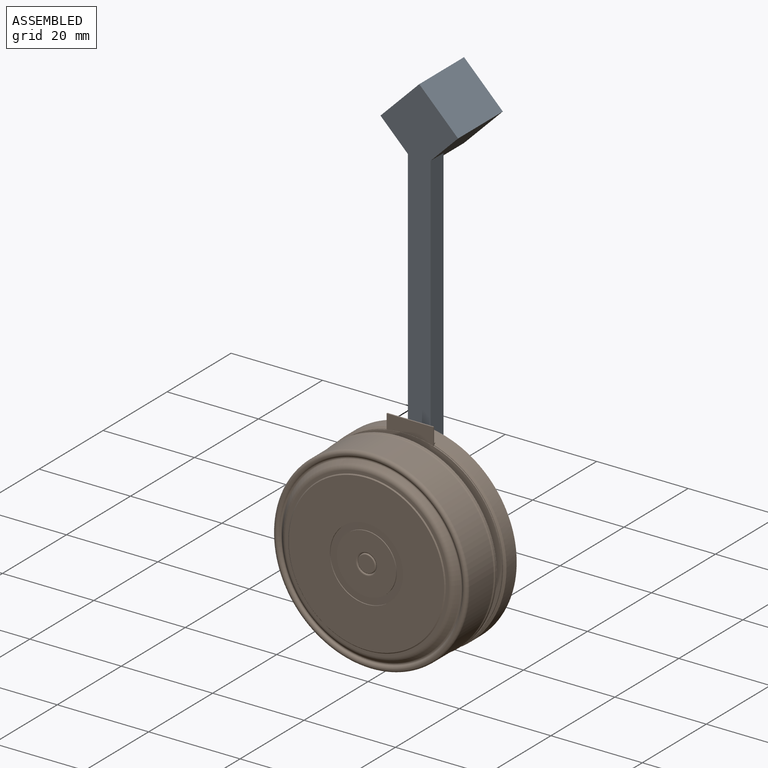
[diagram: assembled view]
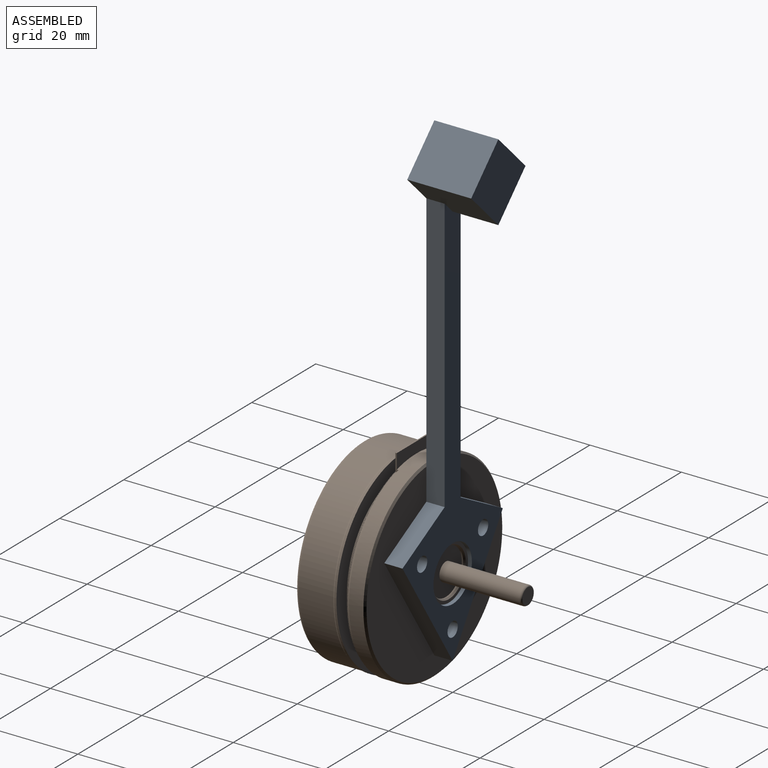
[diagram: assembled view, second angle]
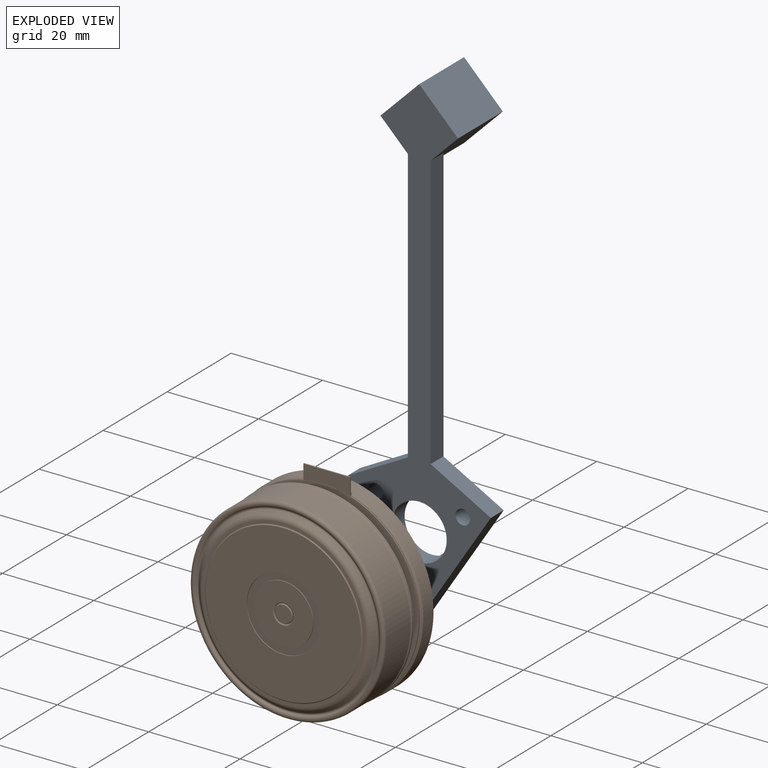
[diagram: exploded view]
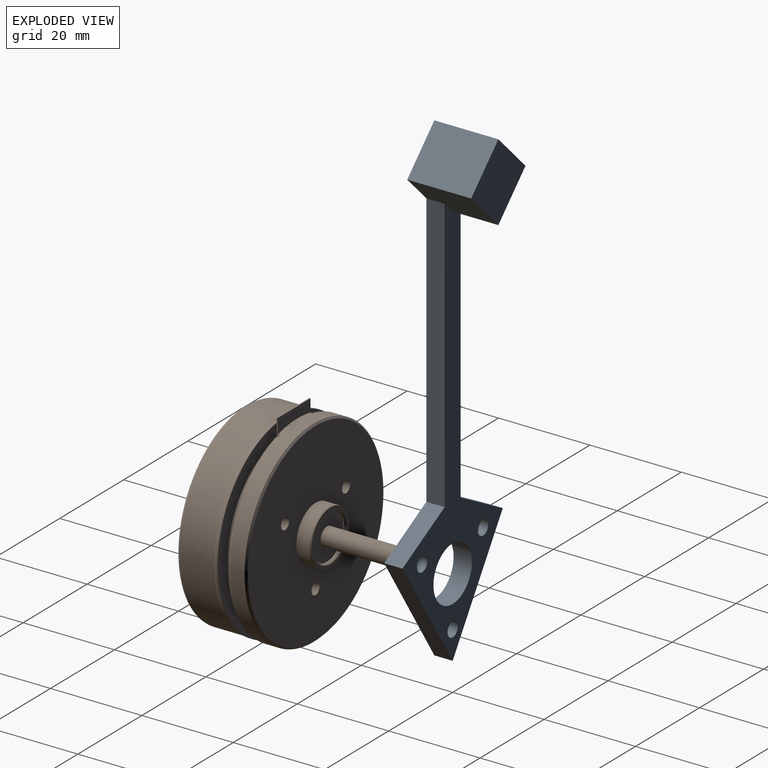
[diagram: exploded view, second angle]
FCSTD DOCUMENT  (FreeCAD 1.0R39109 (Git))
Label: motor
License: All rights reserved
LicenseURL: https://en.wikipedia.org/wiki/All_rights_reserved
objects: Sketcher::SketchObject×2, PartDesign::Pad×2, App::Link×2, App::FeaturePython×2, Part::Feature×1, Part::Box×1, Part::Cut×1, Assembly::JointGroup×1, Assembly::AssemblyObject×1, PartDesign::Body×1
note: 14 computed .brp shape members not serialized (recipe doc carries the construction recipe); baked Part::Feature solids carry a one-line shape summary decoded from their .brp

FEATURE [Part::Feature] Part__Feature  label="1035638"
  shape: bbox 37 x 126.1 x 47.12 mm, 78 faces (baked)
FEATURE [Part::Box] Box  label="Cube"
  AttacherType = Attacher::AttachEngine3D
  Height = 15
  Length = 5
  Placement = pos=(0,-124,-7) rot=(0,0,1;0rad)
  Width = 100
FEATURE [Part::Cut] Cut
  Base = -> Part__Feature
  Tool = -> Box
FEATURE [Sketcher::SketchObject] Sketch
  ArcFitTolerance = 1e-06
  AttachmentSupport = -> [XZ_Plane]
  FullyConstrained = false
  MakeInternals = false
  MapMode = 5
  Placement = pos=(0,0,0) rot=(1,0,0;1.5708rad)
  sketch-geometry (18):
    g0: LineSegment StartX=-2.5 StartY=14.1095 StartZ=0 EndX=-2.5 EndY=74.1095 EndZ=0
    g1: LineSegment StartX=2.5 StartY=14.1095 StartZ=0 EndX=2.5 EndY=74.1095 EndZ=0
    g2: LineSegment StartX=2.5 StartY=74.1095 StartZ=0 EndX=8.48528 EndY=80.0948 EndZ=0
    g3: LineSegment StartX=8.48528 StartY=80.0948 StartZ=0 EndX=0 EndY=88.5801 EndZ=0
    g4: LineSegment StartX=0 StartY=88.5801 StartZ=0 EndX=-8.48528 EndY=80.0948 EndZ=0
    g5: Circle CenterX=-9.52628 CenterY=5.5 CenterZ=0 NormalX=0 NormalY=0 NormalZ=1 AngleXU=0 Radius=1.6
    g6: Circle CenterX=9.52628 CenterY=5.5 CenterZ=0 NormalX=0 NormalY=0 NormalZ=1 AngleXU=0 Radius=1.6
    g7: Circle CenterX=0 CenterY=-11 CenterZ=0 NormalX=0 NormalY=0 NormalZ=1 AngleXU=0 Radius=1.6
    g8: LineSegment [constr] StartX=9.52628 StartY=5.5 StartZ=0 EndX=-9.52628 EndY=5.5 EndZ=0
    g9: LineSegment [constr] StartX=-9.52628 StartY=5.5 StartZ=0 EndX=0 EndY=-11 EndZ=0
    g10: LineSegment [constr] StartX=0 StartY=-11 StartZ=0 EndX=9.52628 EndY=5.5 EndZ=0
    g11: LineSegment StartX=-2.5 StartY=14.1095 StartZ=0 EndX=-15.6702 EndY=6.97829 EndZ=0
    g12: LineSegment StartX=-15.6702 StartY=6.97829 StartZ=0 EndX=0 EndY=-17.2325 EndZ=0
    g13: LineSegment StartX=0 StartY=-17.2325 StartZ=0 EndX=15.6702 EndY=6.97829 EndZ=0
    g14: LineSegment StartX=15.6702 StartY=6.97829 StartZ=0 EndX=2.5 EndY=14.1095 EndZ=0
    g15: Circle CenterX=0 CenterY=0 CenterZ=0 NormalX=0 NormalY=0 NormalZ=1 AngleXU=0 Radius=6
    g16: Circle [constr] CenterX=0 CenterY=0 CenterZ=0 NormalX=0 NormalY=0 NormalZ=1 AngleXU=0 Radius=11
    g17: LineSegment StartX=-8.48528 StartY=80.0948 StartZ=0 EndX=-2.5 EndY=74.1095 EndZ=0
  constraints (43):
    c: Vertical(g0)
    c: Vertical(g1)
    c: Coincident(g2,g3)
    c: Coincident(g3,g4)
    c: Distance(g4,g3) = 12
    c: Distance(g0,g1) = 5
    c: Diameter(g5) = 3.2
    c: Equal(g5,g6)
    c: Equal(g5,g7)
    c: Coincident(g8,g9)
    c: Coincident(g9,g10)
    c: Coincident(g10,g8)
    c: Equal(g8,g9)
    c: Equal(g8,g10)
    c: Coincident(g10,g6)
    c: Coincident(g5,g8)
    c: Coincident(g7,g9)
    c: Coincident(g0,g11)
    c: Coincident(g11,g12)
    c: PointOnObject(g12,g-2)
    c: Coincident(g12,g13)
    c: Coincident(g13,g14)
    c: Coincident(g14,g1)
    c: Symmetric(g5,g6,g-2)
    c: Diameter(g15) = 12
    c: PointOnObject(g6,g16)
    c: PointOnObject(g7,g16)
    c: Diameter(g16) = 22
    c: Coincident(g17,g4)
    c: Coincident(g17,g0)
    c: Coincident(g2,g1)
    c: Distance(g3,g3) = 12
    c: PointOnObject(g3,g-2)
    c: Angle(g4,g3) = 1.5708
    c: Horizontal(g4,g2)
    c: Angle(g17,g4) = 1.5708
    c: Symmetric(g0,g1,g-2)
    c: Horizontal(g0,g1)
    c: Coincident(g15,g16)
    c: Coincident(g15,g-1)
    c: Horizontal(g11,g13)
    c: Equal(g11,g14)
    c: DistanceY(g1,g1) = 60
FEATURE [PartDesign::Pad] Pad
  Direction = (0,-1,2e-16)
  Length = 4
  Length2 = 10
  Placement = pos=(0,0,0) rot=(1,0,0;1.5708rad)
  Profile = -> Sketch
  ReferenceAxis = -> Sketch [N_Axis]
  Refine = true
  Suppressed = false
  Type = 0
FEATURE [App::Link] Body001
  LinkedObject = -> Body
FEATURE [App::FeaturePython] GroundedJoint  # Assembly grounded joint (typed FeaturePython)
  ObjectToGround = -> Body001
FEATURE [App::Link] Cut001
  LinkPlacement = pos=(2.821e-13,-4,1.863e-13) rot=(0.57735,-0.57735,0.57735;4.18879rad)
  LinkedObject = -> Cut
  Placement = pos=(2.821e-13,-4,1.863e-13) rot=(0.57735,-0.57735,0.57735;4.18879rad)
FEATURE [App::FeaturePython] Joint  label="Fixed"  # Assembly joint (typed FeaturePython)
  Activated = true
  AngleMax = 0
  AngleMin = 0
  Detach1 = false
  Detach2 = false
  Distance = 0
  Distance2 = 0
  EnableAngleMax = false
  EnableAngleMin = false
  EnableLengthMax = false
  EnableLengthMin = false
  JointType = 0 (Fixed)
  LengthMax = 0
  LengthMin = 0
  Offset2 = pos=(0,0,0) rot=(0,0,-1;0.523599rad)
  Placement1 = pos=(-9.52628,-4,5.5) rot=(1,0,0;1.5708rad)
  Placement2 = pos=(-9e-16,-5.5,-9.52628) rot=(0,1,0;4.71239rad)
  Reference1 = -> Assembly [Body001.Edge36,Body001.Edge36]
  Reference2 = -> Assembly [Cut001.Edge14,Cut001.Edge14]
FEATURE [Assembly::JointGroup] Joints
  Group = -> [GroundedJoint,Joint]
FEATURE [Assembly::AssemblyObject] Assembly
  Group = -> [Joints,Body001,GroundedJoint,Cut001,Joint]
  Origin = -> Origin001
  Type = Assembly
FEATURE [Sketcher::SketchObject] Sketch001
  ArcFitTolerance = 1e-06
  AttachmentSupport = -> [Pad]
  ExternalGeometry = -> [Pad]
  FullyConstrained = true
  MakeInternals = false
  MapMode = 5
  Placement = pos=(0,6.3e-15,0) rot=(-1,0,0;1.5708rad)
  sketch-geometry (4):
    g0: LineSegment StartX=-8.48528 StartY=-80.0948 StartZ=0 EndX=0 EndY=-88.5801 EndZ=0
    g1: LineSegment StartX=0 StartY=-88.5801 StartZ=0 EndX=8.48528 EndY=-80.0948 EndZ=0
    g2: LineSegment StartX=8.48528 StartY=-80.0948 StartZ=0 EndX=0 EndY=-71.6095 EndZ=0
    g3: LineSegment StartX=0 StartY=-71.6095 StartZ=0 EndX=-8.48528 EndY=-80.0948 EndZ=0
  constraints (9):
    c: Coincident(g0,g1)
    c: Coincident(g1,g2)
    c: Coincident(g2,g3)
    c: Coincident(g3,g0)
    c: Distance(g0,g2) = 12
    c: Coincident(g0,g-6)
    c: Coincident(g0,g-4)
    c: Coincident(g1,g-5)
    c: PointOnObject(g2,g-2)
FEATURE [PartDesign::Pad] Pad001
  BaseFeature = -> Pad
  Direction = (0,1,2e-16)
  Length = 10
  Length2 = 10
  Placement = pos=(0,0,0) rot=(1,0,0;1.5708rad)
  Profile = -> Sketch001
  ReferenceAxis = -> Sketch001 [N_Axis]
  Refine = true
  Suppressed = false
  Type = 0
FEATURE [PartDesign::Body] Body
  AllowCompound = false
  Group = -> [Sketch,Pad,Sketch001,Pad001]
  Origin = -> Origin
  Placement = pos=(-37,-7,2) rot=(0,0,1;3.14159rad)
  Tip = -> Pad001
